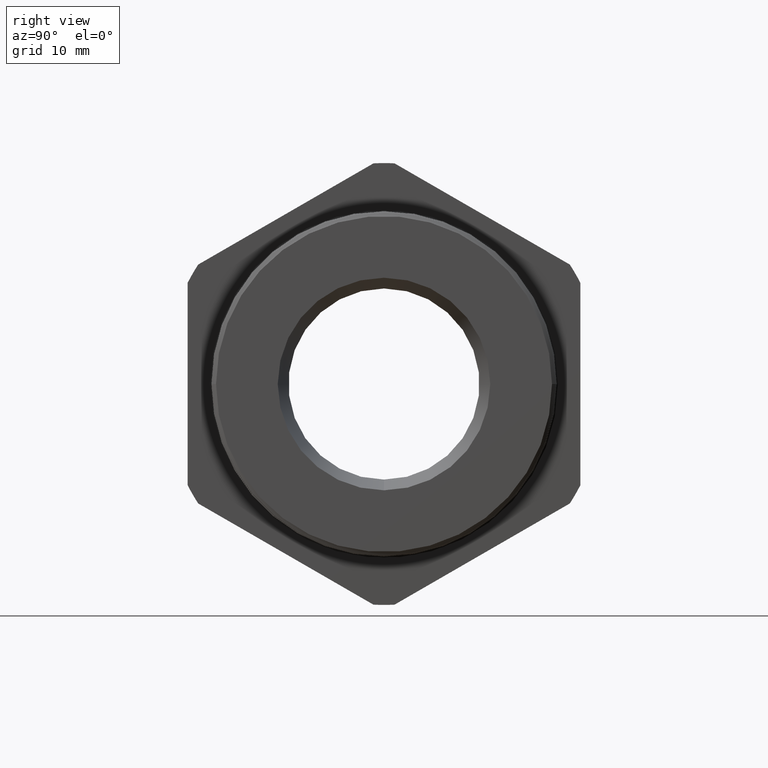
[diagram: clean part render]
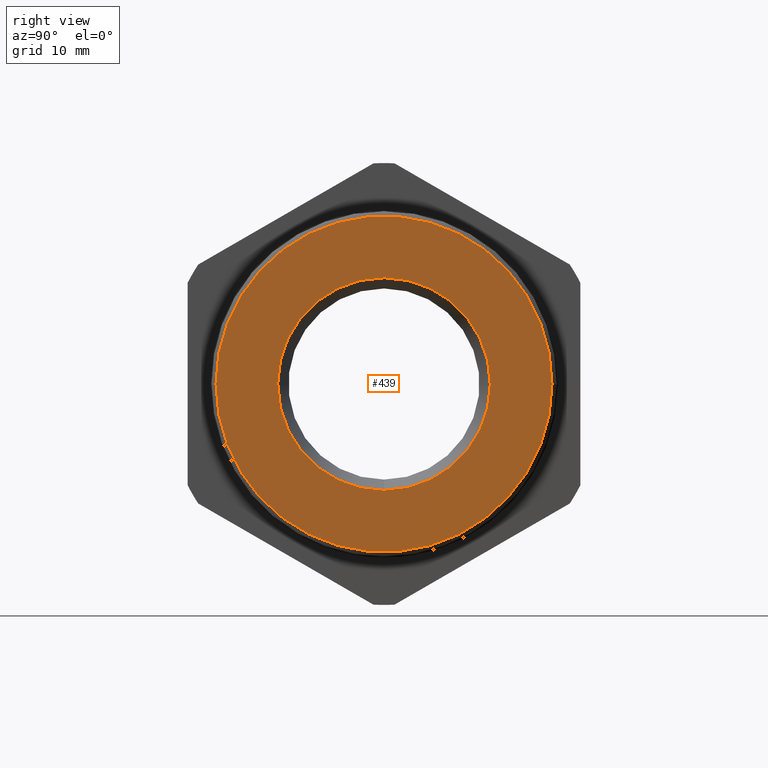
[diagram: same view with one face highlighted and labeled with its STEP entity id]
A machine part, right view. The second image highlights one B-rep face of the part: STEP entity #439.
In plain terms, the highlighted planar face has unit normal (-1, 0, 0).
Its self-contained STEP definition (entity closure, byte-faithful):
#12 = EDGE_CURVE ( 'NONE', #57, #15, #923, .T. ) ;
#15 = VERTEX_POINT ( 'NONE', #914 ) ;
#57 = VERTEX_POINT ( 'NONE', #969 ) ;
#438 = EDGE_CURVE ( 'NONE', #15, #57, #1803, .T. ) ;
#439 = ADVANCED_FACE ( 'NONE', ( #1799, #1798 ), #1797, .F. ) ;
#440 = EDGE_LOOP ( 'NONE', ( #441, #443 ) ) ;
#441 = ORIENTED_EDGE ( 'NONE', *, *, #442, .T. ) ;
#442 = EDGE_CURVE ( 'NONE', #808, #807, #1792, .T. ) ;
#443 = ORIENTED_EDGE ( 'NONE', *, *, #806, .T. ) ;
#444 = EDGE_LOOP ( 'NONE', ( #445, #446 ) ) ;
#445 = ORIENTED_EDGE ( 'NONE', *, *, #12, .T. ) ;
#446 = ORIENTED_EDGE ( 'NONE', *, *, #438, .T. ) ;
#806 = EDGE_CURVE ( 'NONE', #807, #808, #2346, .T. ) ;
#807 = VERTEX_POINT ( 'NONE', #2342 ) ;
#808 = VERTEX_POINT ( 'NONE', #2341 ) ;
#914 = CARTESIAN_POINT ( 'NONE',  ( 1.365923996832131600E-016, 5.469306817993358300E-017, 0.4466027937035643700 ) ) ;
#919 = DIRECTION ( 'NONE',  ( 0.0000000000000000000, 0.0000000000000000000, 1.000000000000000000 ) ) ;
#920 = DIRECTION ( 'NONE',  ( -1.000000000000000000, 0.0000000000000000000, 0.0000000000000000000 ) ) ;
#921 = CARTESIAN_POINT ( 'NONE',  ( 1.365923996832131600E-016, 0.0000000000000000000, 0.0000000000000000000 ) ) ;
#922 = AXIS2_PLACEMENT_3D ( 'NONE', #921, #920, #919 ) ;
#923 = CIRCLE ( 'NONE', #922, 0.4466027937035643700 ) ;
#969 = CARTESIAN_POINT ( 'NONE',  ( 1.365923996832131600E-016, 0.0000000000000000000, -0.4466027937035643700 ) ) ;
#1740 = CARTESIAN_POINT ( 'NONE',  ( 1.365923996832131600E-016, 0.0000000000000000000, 0.0000000000000000000 ) ) ;
#1788 = DIRECTION ( 'NONE',  ( 0.0000000000000000000, 0.0000000000000000000, 1.000000000000000000 ) ) ;
#1789 = DIRECTION ( 'NONE',  ( 1.000000000000000000, 0.0000000000000000000, 0.0000000000000000000 ) ) ;
#1790 = CARTESIAN_POINT ( 'NONE',  ( 1.109813247426107000E-016, -5.723317061645322600E-017, 4.579536940405342800E-017 ) ) ;
#1791 = AXIS2_PLACEMENT_3D ( 'NONE', #1790, #1789, #1788 ) ;
#1792 = CIRCLE ( 'NONE', #1791, 0.7057512886940353600 ) ;
#1793 = DIRECTION ( 'NONE',  ( 0.0000000000000000000, 0.0000000000000000000, 1.000000000000000000 ) ) ;
#1794 = DIRECTION ( 'NONE',  ( -1.000000000000000000, 0.0000000000000000000, 0.0000000000000000000 ) ) ;
#1795 = CARTESIAN_POINT ( 'NONE',  ( 1.112372110970704600E-016, 0.7187400537252496300, 0.0000000000000000000 ) ) ;
#1796 = AXIS2_PLACEMENT_3D ( 'NONE', #1795, #1794, #1793 ) ;
#1797 = PLANE ( 'NONE',  #1796 ) ;
#1798 = FACE_BOUND ( 'NONE', #444, .T. ) ;
#1799 = FACE_OUTER_BOUND ( 'NONE', #440, .T. ) ;
#1800 = DIRECTION ( 'NONE',  ( 0.0000000000000000000, 0.0000000000000000000, 1.000000000000000000 ) ) ;
#1801 = DIRECTION ( 'NONE',  ( -1.000000000000000000, 0.0000000000000000000, 0.0000000000000000000 ) ) ;
#1802 = AXIS2_PLACEMENT_3D ( 'NONE', #1740, #1801, #1800 ) ;
#1803 = CIRCLE ( 'NONE', #1802, 0.4466027937035643700 ) ;
#2341 = CARTESIAN_POINT ( 'NONE',  ( 1.109813247426107000E-016, -0.7057512886940353600, 0.0000000000000000000 ) ) ;
#2342 = CARTESIAN_POINT ( 'NONE',  ( 1.109813247426107000E-016, 0.7057512886940353600, 8.723714691639645900E-017 ) ) ;
#2343 = DIRECTION ( 'NONE',  ( 0.0000000000000000000, 0.0000000000000000000, 1.000000000000000000 ) ) ;
#2344 = DIRECTION ( 'NONE',  ( 1.000000000000000000, 0.0000000000000000000, 0.0000000000000000000 ) ) ;
#2345 = AXIS2_PLACEMENT_3D ( 'NONE', #2352, #2344, #2343 ) ;
#2346 = CIRCLE ( 'NONE', #2345, 0.7057512886940353600 ) ;
#2352 = CARTESIAN_POINT ( 'NONE',  ( 1.109813247426107000E-016, -5.723317061645322600E-017, 4.579536940405342800E-017 ) ) ;